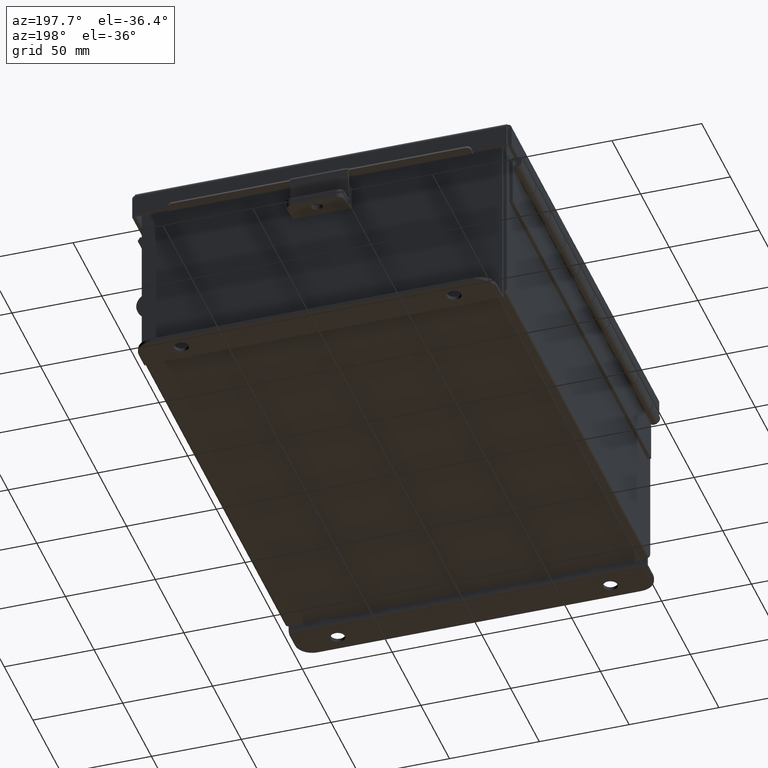
[diagram: clean part render]
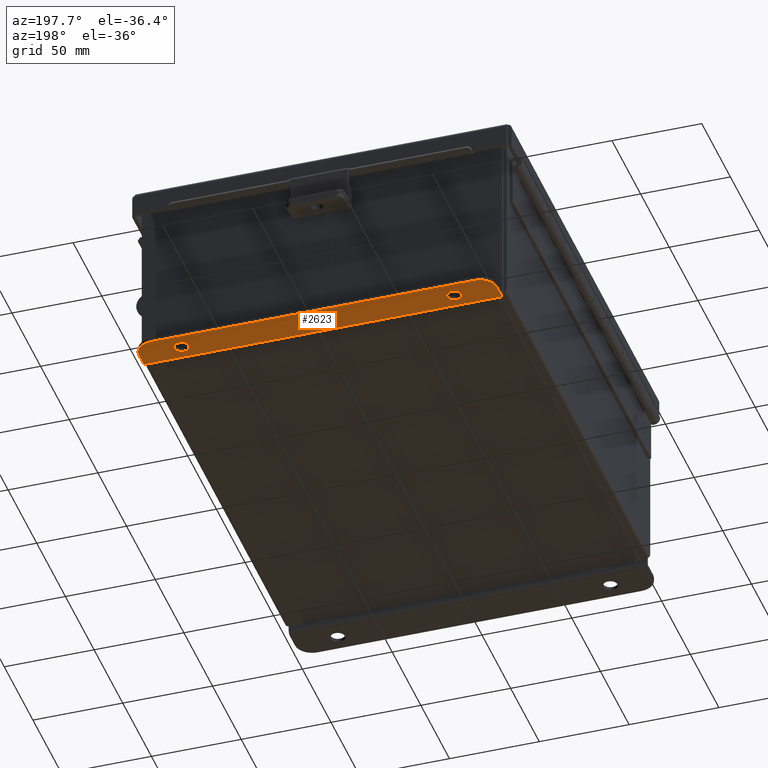
[diagram: same view with one face highlighted and labeled with its STEP entity id]
A machine part, auxiliary view. The second image highlights one B-rep face of the part: STEP entity #2623.
In plain terms, the highlighted planar face has unit normal (0, 0, 1).
Its self-contained STEP definition (entity closure, byte-faithful):
#327 = AXIS2_PLACEMENT_3D ( 'NONE', #7119, #4492, #6950 ) ;
#734 = CARTESIAN_POINT ( 'NONE',  ( 2.987799999999999600, 0.5187999999999999300, -2.187000000000002500 ) ) ;
#913 = AXIS2_PLACEMENT_3D ( 'NONE', #14133, #14077, #13516 ) ;
#1046 = EDGE_CURVE ( 'NONE', #11859, #6564, #1712, .T. ) ;
#1164 = CARTESIAN_POINT ( 'NONE',  ( 0.0000000000000000000, 0.7378000000000000100, -2.187000000000002900 ) ) ;
#1311 = CIRCLE ( 'NONE', #2166, 0.1560000000000001900 ) ;
#1439 = CIRCLE ( 'NONE', #2233, 0.1560000000000001900 ) ;
#1648 = ORIENTED_EDGE ( 'NONE', *, *, #4637, .T. ) ;
#1712 = LINE ( 'NONE', #3480, #11955 ) ;
#2166 = AXIS2_PLACEMENT_3D ( 'NONE', #8444, #8394, #8326 ) ;
#2233 = AXIS2_PLACEMENT_3D ( 'NONE', #11170, #3494, #12419 ) ;
#2266 = DIRECTION ( 'NONE',  ( 0.0000000000000000000, -1.000000000000000000, 3.332425039709726500E-015 ) ) ;
#2623 = ADVANCED_FACE ( 'NONE', ( #6710, #12993, #13379 ), #2719, .F. ) ;
#2631 = DIRECTION ( 'NONE',  ( 0.0000000000000000000, 1.000000000000000000, -3.332425039709726500E-015 ) ) ;
#2719 = PLANE ( 'NONE',  #3020 ) ;
#2877 = ORIENTED_EDGE ( 'NONE', *, *, #6978, .T. ) ;
#2942 = DIRECTION ( 'NONE',  ( 0.0000000000000000000, 3.332425039709726500E-015, 1.000000000000000000 ) ) ;
#2970 = CARTESIAN_POINT ( 'NONE',  ( -3.925299999999999600, -6.556435184794231700E-015, -2.187000000000000300 ) ) ;
#3020 = AXIS2_PLACEMENT_3D ( 'NONE', #3053, #2942, #2266 ) ;
#3053 = CARTESIAN_POINT ( 'NONE',  ( 0.0000000000000000000, -6.556435184794231700E-015, -2.187000000000000300 ) ) ;
#3236 = VERTEX_POINT ( 'NONE', #3971 ) ;
#3271 = CARTESIAN_POINT ( 'NONE',  ( 3.550299999999999600, 0.3627999999999997300, -2.187000000000001600 ) ) ;
#3455 = DIRECTION ( 'NONE',  ( 0.0000000000000000000, -1.000000000000000000, 3.332425039709726500E-015 ) ) ;
#3480 = CARTESIAN_POINT ( 'NONE',  ( 3.925299999999999600, -6.556435184794231700E-015, -2.187000000000000300 ) ) ;
#3494 = DIRECTION ( 'NONE',  ( 0.0000000000000000000, -3.702694488566362300E-015, -1.000000000000000000 ) ) ;
#3761 = EDGE_LOOP ( 'NONE', ( #11486, #12040 ) ) ;
#3971 = CARTESIAN_POINT ( 'NONE',  ( -3.925299999999999600, 0.01300000000000010700, -2.187000000000000300 ) ) ;
#4492 = DIRECTION ( 'NONE',  ( 0.0000000000000000000, -3.702694488566362300E-015, -1.000000000000000000 ) ) ;
#4599 = LINE ( 'NONE', #2970, #14690 ) ;
#4607 = DIRECTION ( 'NONE',  ( 0.0000000000000000000, -1.000000000000000000, 3.642463991552350200E-015 ) ) ;
#4637 = EDGE_CURVE ( 'NONE', #3236, #15556, #4599, .T. ) ;
#4887 = EDGE_CURVE ( 'NONE', #9164, #7183, #1311, .T. ) ;
#4927 = VERTEX_POINT ( 'NONE', #6175 ) ;
#4954 = LINE ( 'NONE', #1164, #12102 ) ;
#5171 = EDGE_CURVE ( 'NONE', #7183, #9164, #15068, .T. ) ;
#5269 = EDGE_LOOP ( 'NONE', ( #13405, #2877, #6976, #9165, #1648, #5537 ) ) ;
#5537 = ORIENTED_EDGE ( 'NONE', *, *, #8530, .T. ) ;
#5763 = EDGE_CURVE ( 'NONE', #10327, #9938, #15994, .T. ) ;
#6175 = CARTESIAN_POINT ( 'NONE',  ( -3.550299999999999600, 0.7378000000000000100, -2.187000000000002900 ) ) ;
#6201 = LINE ( 'NONE', #14111, #16185 ) ;
#6391 = DIRECTION ( 'NONE',  ( 1.000000000000000000, 0.0000000000000000000, -0.0000000000000000000 ) ) ;
#6564 = VERTEX_POINT ( 'NONE', #16276 ) ;
#6623 = EDGE_CURVE ( 'NONE', #4927, #10665, #4954, .T. ) ;
#6710 = FACE_BOUND ( 'NONE', #3761, .T. ) ;
#6773 = AXIS2_PLACEMENT_3D ( 'NONE', #7641, #16308, #8895 ) ;
#6950 = DIRECTION ( 'NONE',  ( 0.0000000000000000000, 1.000000000000000000, -3.502369222646487000E-015 ) ) ;
#6976 = ORIENTED_EDGE ( 'NONE', *, *, #1046, .T. ) ;
#6978 = EDGE_CURVE ( 'NONE', #10665, #11859, #9569, .T. ) ;
#7089 = EDGE_CURVE ( 'NONE', #9938, #10327, #1439, .T. ) ;
#7119 = CARTESIAN_POINT ( 'NONE',  ( -2.987799999999999600, 0.3627999999999997300, -2.187000000000002100 ) ) ;
#7183 = VERTEX_POINT ( 'NONE', #11148 ) ;
#7641 = CARTESIAN_POINT ( 'NONE',  ( -3.550299999999999600, 0.3627999999999997300, -2.187000000000001600 ) ) ;
#7912 = DIRECTION ( 'NONE',  ( 1.000000000000000000, -0.0000000000000000000, -0.0000000000000000000 ) ) ;
#8317 = CARTESIAN_POINT ( 'NONE',  ( -3.925299999999999600, 0.3627999999999997300, -2.187000000000001600 ) ) ;
#8326 = DIRECTION ( 'NONE',  ( 0.0000000000000000000, 1.000000000000000000, -3.502369222646487000E-015 ) ) ;
#8394 = DIRECTION ( 'NONE',  ( 0.0000000000000000000, -3.702694488566362300E-015, -1.000000000000000000 ) ) ;
#8444 = CARTESIAN_POINT ( 'NONE',  ( -2.987799999999999600, 0.3627999999999997300, -2.187000000000002100 ) ) ;
#8530 = EDGE_CURVE ( 'NONE', #15556, #4927, #14646, .T. ) ;
#8895 = DIRECTION ( 'NONE',  ( 0.0000000000000000000, -1.000000000000000000, 3.642463991552350200E-015 ) ) ;
#9164 = VERTEX_POINT ( 'NONE', #10890 ) ;
#9165 = ORIENTED_EDGE ( 'NONE', *, *, #16239, .F. ) ;
#9569 = CIRCLE ( 'NONE', #12013, 0.3750000000000000600 ) ;
#9938 = VERTEX_POINT ( 'NONE', #11537 ) ;
#10327 = VERTEX_POINT ( 'NONE', #734 ) ;
#10665 = VERTEX_POINT ( 'NONE', #12954 ) ;
#10890 = CARTESIAN_POINT ( 'NONE',  ( -2.987799999999999600, 0.5187999999999999300, -2.187000000000002500 ) ) ;
#11148 = CARTESIAN_POINT ( 'NONE',  ( -2.987799999999999600, 0.2067999999999996000, -2.187000000000001200 ) ) ;
#11170 = CARTESIAN_POINT ( 'NONE',  ( 2.987799999999999600, 0.3627999999999997300, -2.187000000000002100 ) ) ;
#11486 = ORIENTED_EDGE ( 'NONE', *, *, #4887, .F. ) ;
#11537 = CARTESIAN_POINT ( 'NONE',  ( 2.987799999999999600, 0.2067999999999996000, -2.187000000000001200 ) ) ;
#11859 = VERTEX_POINT ( 'NONE', #14814 ) ;
#11955 = VECTOR ( 'NONE', #3455, 39.37007874015748100 ) ;
#12013 = AXIS2_PLACEMENT_3D ( 'NONE', #3271, #12213, #4607 ) ;
#12040 = ORIENTED_EDGE ( 'NONE', *, *, #5171, .F. ) ;
#12102 = VECTOR ( 'NONE', #6391, 39.37007874015748100 ) ;
#12213 = DIRECTION ( 'NONE',  ( -0.0000000000000000000, -3.332425039709726100E-015, -1.000000000000000000 ) ) ;
#12419 = DIRECTION ( 'NONE',  ( 0.0000000000000000000, 1.000000000000000000, -3.502369222646487000E-015 ) ) ;
#12954 = CARTESIAN_POINT ( 'NONE',  ( 3.550299999999999600, 0.7378000000000000100, -2.187000000000002900 ) ) ;
#12993 = FACE_BOUND ( 'NONE', #14928, .T. ) ;
#13379 = FACE_OUTER_BOUND ( 'NONE', #5269, .T. ) ;
#13405 = ORIENTED_EDGE ( 'NONE', *, *, #6623, .T. ) ;
#13516 = DIRECTION ( 'NONE',  ( 0.0000000000000000000, 1.000000000000000000, -3.502369222646487000E-015 ) ) ;
#14077 = DIRECTION ( 'NONE',  ( 0.0000000000000000000, -3.702694488566362300E-015, -1.000000000000000000 ) ) ;
#14111 = CARTESIAN_POINT ( 'NONE',  ( 3.925299999999999600, 0.01300000000000010700, -2.187000000000000300 ) ) ;
#14133 = CARTESIAN_POINT ( 'NONE',  ( 2.987799999999999600, 0.3627999999999997300, -2.187000000000002100 ) ) ;
#14646 = CIRCLE ( 'NONE', #6773, 0.3750000000000000600 ) ;
#14690 = VECTOR ( 'NONE', #2631, 39.37007874015748100 ) ;
#14814 = CARTESIAN_POINT ( 'NONE',  ( 3.925299999999999600, 0.3627999999999997300, -2.187000000000001600 ) ) ;
#14928 = EDGE_LOOP ( 'NONE', ( #15963, #15741 ) ) ;
#15068 = CIRCLE ( 'NONE', #327, 0.1560000000000001900 ) ;
#15556 = VERTEX_POINT ( 'NONE', #8317 ) ;
#15741 = ORIENTED_EDGE ( 'NONE', *, *, #7089, .F. ) ;
#15963 = ORIENTED_EDGE ( 'NONE', *, *, #5763, .F. ) ;
#15994 = CIRCLE ( 'NONE', #913, 0.1560000000000001900 ) ;
#16185 = VECTOR ( 'NONE', #7912, 39.37007874015748100 ) ;
#16239 = EDGE_CURVE ( 'NONE', #3236, #6564, #6201, .T. ) ;
#16276 = CARTESIAN_POINT ( 'NONE',  ( 3.925299999999999600, 0.01299999999999901400, -2.187000000000000300 ) ) ;
#16308 = DIRECTION ( 'NONE',  ( -0.0000000000000000000, -3.332425039709726100E-015, -1.000000000000000000 ) ) ;